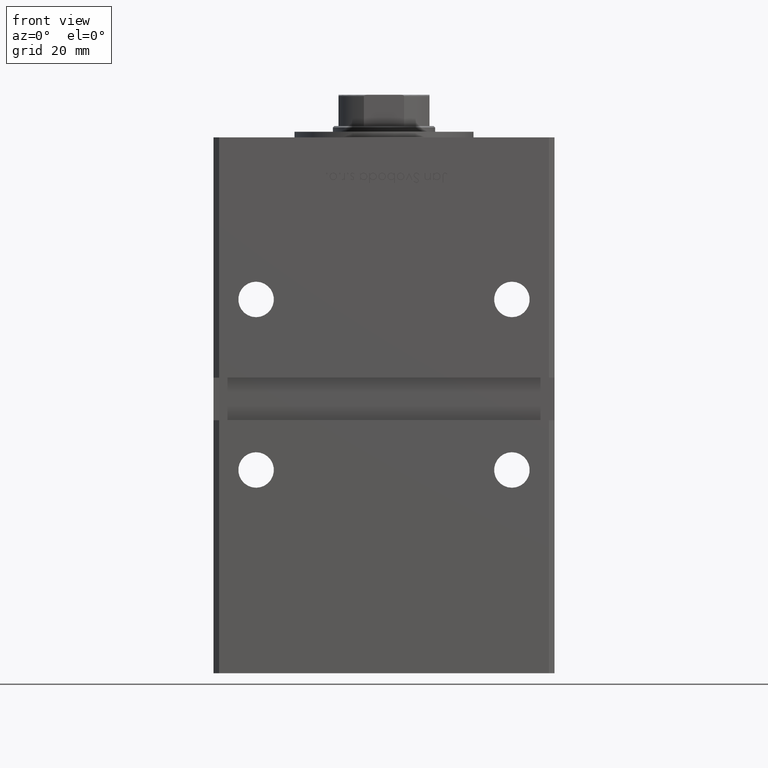
[diagram: clean part render]
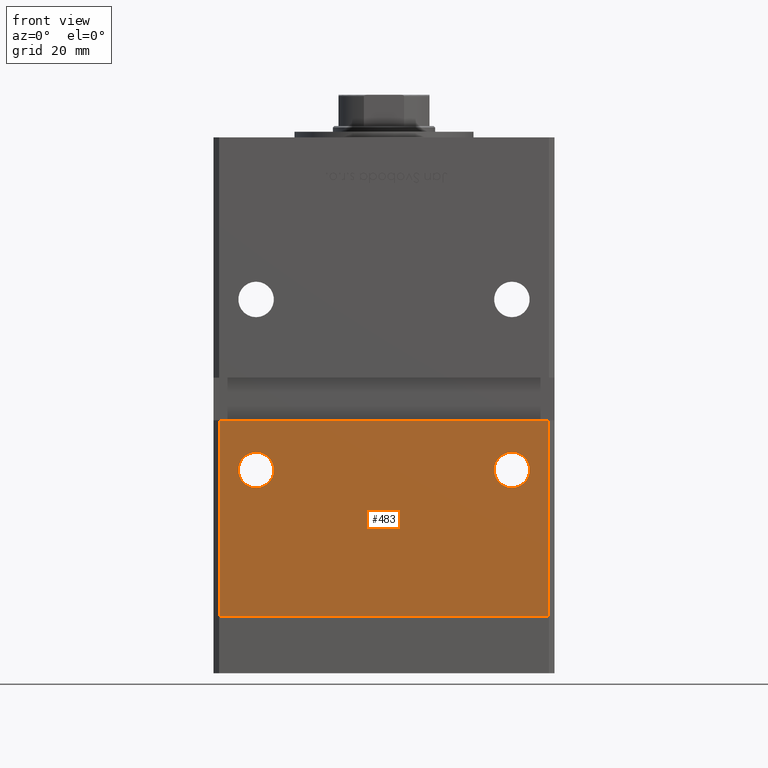
[diagram: same view with one face highlighted and labeled with its STEP entity id]
A machine part, front view. The second image highlights one B-rep face of the part: STEP entity #483.
In plain terms, the highlighted planar face has unit normal (0, 1, 0).
Its self-contained STEP definition (entity closure, byte-faithful):
#132 = VECTOR ( 'NONE', #28116, 1000.000000000000000 ) ;
#279 = CIRCLE ( 'NONE', #13104, 6.249999999999998224 ) ;
#483 = ADVANCED_FACE ( 'NONE', ( #30591, #34614, #42169 ), #51282, .F. ) ;
#1266 = VERTEX_POINT ( 'NONE', #49718 ) ;
#1300 = CARTESIAN_POINT ( 'NONE',  ( 57.99999999999997868, -50.99999999999999289, 0.000000000000000000 ) ) ;
#1408 = ORIENTED_EDGE ( 'NONE', *, *, #5519, .F. ) ;
#2029 = ORIENTED_EDGE ( 'NONE', *, *, #36757, .T. ) ;
#2300 = VERTEX_POINT ( 'NONE', #8996 ) ;
#2520 = VERTEX_POINT ( 'NONE', #12353 ) ;
#2576 = CARTESIAN_POINT ( 'NONE',  ( -45.00000000000000000, -50.99999999999999289, 51.50000000000000000 ) ) ;
#3285 = AXIS2_PLACEMENT_3D ( 'NONE', #3840, #15639, #44892 ) ;
#3840 = CARTESIAN_POINT ( 'NONE',  ( 45.00000000000000000, -50.99999999999999289, 51.50000000000000000 ) ) ;
#4229 = EDGE_CURVE ( 'NONE', #7753, #33634, #21531, .T. ) ;
#4243 = AXIS2_PLACEMENT_3D ( 'NONE', #38817, #34522, #31279 ) ;
#4395 = ORIENTED_EDGE ( 'NONE', *, *, #13989, .T. ) ;
#4397 = DIRECTION ( 'NONE',  ( 0.000000000000000000, 1.000000000000000000, 0.000000000000000000 ) ) ;
#5250 = CARTESIAN_POINT ( 'NONE',  ( -57.99999999999997868, -50.99999999999999289, 0.000000000000000000 ) ) ;
#5519 = EDGE_CURVE ( 'NONE', #33634, #43281, #26187, .T. ) ;
#5675 = DIRECTION ( 'NONE',  ( 0.000000000000000000, -0.000000000000000000, 1.000000000000000000 ) ) ;
#5850 = VERTEX_POINT ( 'NONE', #17297 ) ;
#6775 = AXIS2_PLACEMENT_3D ( 'NONE', #2576, #20475, #43898 ) ;
#7346 = DIRECTION ( 'NONE',  ( -0.000000000000000000, -0.000000000000000000, -1.000000000000000000 ) ) ;
#7753 = VERTEX_POINT ( 'NONE', #48289 ) ;
#7870 = EDGE_LOOP ( 'NONE', ( #1408, #37786, #2029, #4395 ) ) ;
#8996 = CARTESIAN_POINT ( 'NONE',  ( -45.00000000000000000, -50.99999999999999289, 45.25000000000000000 ) ) ;
#9589 = EDGE_LOOP ( 'NONE', ( #9988, #11113 ) ) ;
#9988 = ORIENTED_EDGE ( 'NONE', *, *, #45313, .T. ) ;
#11113 = ORIENTED_EDGE ( 'NONE', *, *, #32514, .T. ) ;
#11211 = EDGE_CURVE ( 'NONE', #2300, #20765, #279, .T. ) ;
#11955 = CIRCLE ( 'NONE', #4243, 6.249999999999998224 ) ;
#12353 = CARTESIAN_POINT ( 'NONE',  ( 45.00000000000000000, -50.99999999999999289, 45.25000000000000000 ) ) ;
#13104 = AXIS2_PLACEMENT_3D ( 'NONE', #45717, #4397, #37110 ) ;
#13989 = EDGE_CURVE ( 'NONE', #1266, #43281, #41999, .T. ) ;
#14081 = VECTOR ( 'NONE', #46025, 1000.000000000000000 ) ;
#15639 = DIRECTION ( 'NONE',  ( 0.000000000000000000, 1.000000000000000000, 0.000000000000000000 ) ) ;
#17297 = CARTESIAN_POINT ( 'NONE',  ( 45.00000000000000000, -50.99999999999999289, 57.74999999999999289 ) ) ;
#18606 = LINE ( 'NONE', #39259, #39998 ) ;
#20475 = DIRECTION ( 'NONE',  ( 0.000000000000000000, 1.000000000000000000, 0.000000000000000000 ) ) ;
#20765 = VERTEX_POINT ( 'NONE', #33580 ) ;
#21531 = LINE ( 'NONE', #50248, #44638 ) ;
#22960 = CIRCLE ( 'NONE', #3285, 6.249999999999998224 ) ;
#23267 = ORIENTED_EDGE ( 'NONE', *, *, #11211, .T. ) ;
#25618 = CIRCLE ( 'NONE', #6775, 6.249999999999998224 ) ;
#26187 = LINE ( 'NONE', #45275, #132 ) ;
#28116 = DIRECTION ( 'NONE',  ( -0.000000000000000000, -0.000000000000000000, -1.000000000000000000 ) ) ;
#30591 = FACE_BOUND ( 'NONE', #32070, .T. ) ;
#30863 = EDGE_CURVE ( 'NONE', #20765, #2300, #25618, .T. ) ;
#31279 = DIRECTION ( 'NONE',  ( 0.000000000000000000, 0.000000000000000000, 1.000000000000000000 ) ) ;
#32070 = EDGE_LOOP ( 'NONE', ( #37244, #23267 ) ) ;
#32514 = EDGE_CURVE ( 'NONE', #2520, #5850, #11955, .T. ) ;
#33580 = CARTESIAN_POINT ( 'NONE',  ( -45.00000000000000000, -50.99999999999999289, 57.74999999999999289 ) ) ;
#33634 = VERTEX_POINT ( 'NONE', #40627 ) ;
#34522 = DIRECTION ( 'NONE',  ( 0.000000000000000000, 1.000000000000000000, 0.000000000000000000 ) ) ;
#34614 = FACE_BOUND ( 'NONE', #9589, .T. ) ;
#34880 = DIRECTION ( 'NONE',  ( 0.000000000000000000, 1.000000000000000000, 0.000000000000000000 ) ) ;
#36757 = EDGE_CURVE ( 'NONE', #7753, #1266, #18606, .T. ) ;
#37110 = DIRECTION ( 'NONE',  ( 0.000000000000000000, 0.000000000000000000, 1.000000000000000000 ) ) ;
#37244 = ORIENTED_EDGE ( 'NONE', *, *, #30863, .T. ) ;
#37786 = ORIENTED_EDGE ( 'NONE', *, *, #4229, .F. ) ;
#38817 = CARTESIAN_POINT ( 'NONE',  ( 45.00000000000000000, -50.99999999999999289, 51.50000000000000000 ) ) ;
#39172 = CARTESIAN_POINT ( 'NONE',  ( -57.99999999999997868, -50.99999999999999289, 148.5000000000000000 ) ) ;
#39259 = CARTESIAN_POINT ( 'NONE',  ( -57.99999999999997868, -50.99999999999999289, 148.5000000000000000 ) ) ;
#39998 = VECTOR ( 'NONE', #7346, 1000.000000000000000 ) ;
#40627 = CARTESIAN_POINT ( 'NONE',  ( 57.99999999999997868, -50.99999999999999289, 68.99999999999998579 ) ) ;
#41999 = LINE ( 'NONE', #5250, #14081 ) ;
#42169 = FACE_OUTER_BOUND ( 'NONE', #7870, .T. ) ;
#42435 = DIRECTION ( 'NONE',  ( 1.000000000000000000, 0.000000000000000000, 0.000000000000000000 ) ) ;
#43281 = VERTEX_POINT ( 'NONE', #1300 ) ;
#43898 = DIRECTION ( 'NONE',  ( 0.000000000000000000, 0.000000000000000000, 1.000000000000000000 ) ) ;
#44638 = VECTOR ( 'NONE', #42435, 1000.000000000000000 ) ;
#44892 = DIRECTION ( 'NONE',  ( 0.000000000000000000, 0.000000000000000000, 1.000000000000000000 ) ) ;
#45275 = CARTESIAN_POINT ( 'NONE',  ( 57.99999999999997868, -50.99999999999999289, 148.5000000000000000 ) ) ;
#45313 = EDGE_CURVE ( 'NONE', #5850, #2520, #22960, .T. ) ;
#45717 = CARTESIAN_POINT ( 'NONE',  ( -45.00000000000000000, -50.99999999999999289, 51.50000000000000000 ) ) ;
#46025 = DIRECTION ( 'NONE',  ( 1.000000000000000000, 0.000000000000000000, 0.000000000000000000 ) ) ;
#48289 = CARTESIAN_POINT ( 'NONE',  ( -57.99999999999997868, -50.99999999999999289, 68.99999999999998579 ) ) ;
#49718 = CARTESIAN_POINT ( 'NONE',  ( -57.99999999999997868, -50.99999999999999289, 0.000000000000000000 ) ) ;
#50042 = AXIS2_PLACEMENT_3D ( 'NONE', #39172, #34880, #5675 ) ;
#50248 = CARTESIAN_POINT ( 'NONE',  ( -59.99999999999998579, -50.99999999999999289, 68.99999999999998579 ) ) ;
#51282 = PLANE ( 'NONE',  #50042 ) ;